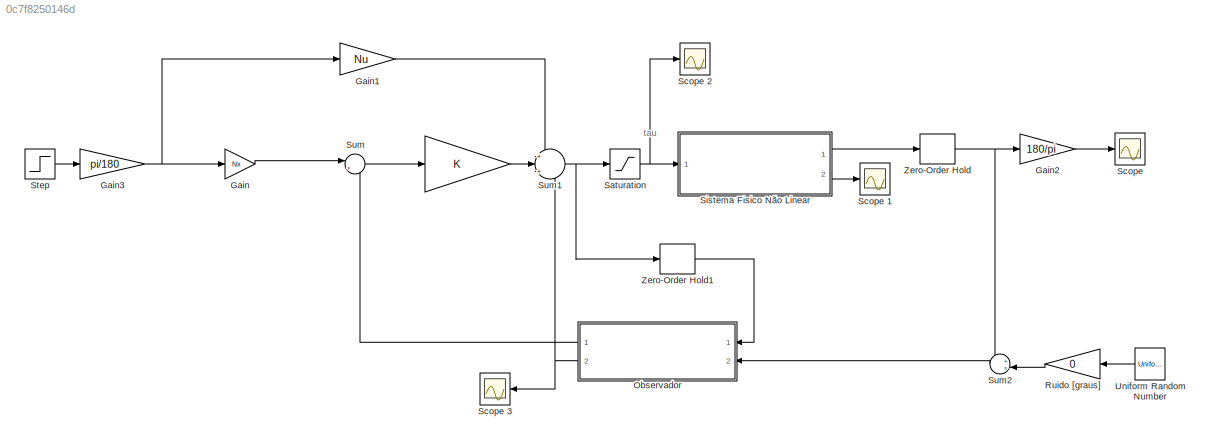
MODEL slx_0c7f8250146d
KIND model
CONFIG AbsTol = auto
CONFIG EnableMultiTasking = off
CONFIG FixedStep = 0.001
CONFIG MaxStep = auto
CONFIG MinStep = auto
CONFIG RelTol = 1e-3
CONFIG SampleTimeConstraint = Unconstrained
CONFIG Solver = ode23s
CONFIG SolverName = ode23s
CONFIG StartTime = 0.0
CONFIG StopTime = 15
BLOCK [Gain]  
  Gain = K
  Multiplication = Matrix(K*u)
BLOCK [Gain] Gain
  Gain = Nx
BLOCK [Gain] Gain1
  Gain = Nu
  Multiplication = Matrix(K*u)
BLOCK [Gain] Gain2
  Gain = 180/pi
BLOCK [Gain] Gain3
  Gain = pi/180
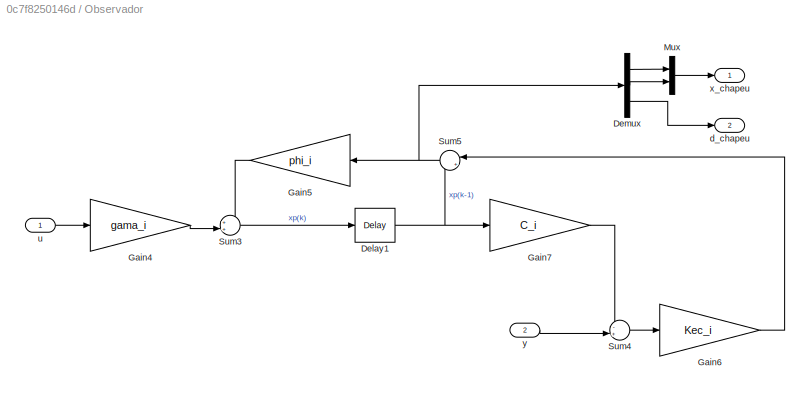
BLOCK [SubSystem] Observador
  NameLocation = top
  Ports = [2, 2]
  RequestExecContextInheritance = off
BLOCK [Delay] Observador/Delay1
  DelayLength = 1
  InitialCondition = [0;0;0]
  InputPortMap = u0
  Ports = [1, 1]
BLOCK [Demux] Observador/Demux
  Outputs = 3
  Ports = [1, 3]
BLOCK [Gain] Observador/Gain4
  Gain = gama_i
  Multiplication = Matrix(K*u) (u vector)
BLOCK [Gain] Observador/Gain5
  Gain = phi_i
  Multiplication = Matrix(K*u) (u vector)
  NameLocation = top
BLOCK [Gain] Observador/Gain6
  Gain = Kec_i
  NameLocation = top
BLOCK [Gain] Observador/Gain7
  Gain = C_i
  Multiplication = Matrix(K*u) (u vector)
  NameLocation = top
BLOCK [Mux] Observador/Mux
  DisplayOption = bar
  Inputs = 2
  Ports = [2, 1]
BLOCK [Sum] Observador/Sum3
  Inputs = ++|
  Ports = [2, 1]
BLOCK [Sum] Observador/Sum4
  Inputs = -+|
  Ports = [2, 1]
BLOCK [Sum] Observador/Sum5
  Inputs = |++
  NameLocation = top
  Ports = [2, 1]
BLOCK [Outport] Observador/d_chapeu
  Port = 2
  VectorParamsAs1DForOutWhenUnconnected = off
BLOCK [Inport] Observador/u
BLOCK [Outport] Observador/x_chapeu
  VectorParamsAs1DForOutWhenUnconnected = off
BLOCK [Inport] Observador/y
  Port = 2
BLOCK [Gain] Ruido [graus]
  Gain = 0
BLOCK [Saturate] Saturation 
  LowerLimit = -0.4118793
  UpperLimit = 0.4118793
BLOCK [Scope] Scope 
  Floating = off
  NumInputPorts = 1
  Ports = [1]
  ScopeSpecificationString = Simulink.scopes.TimeScopeBlockCfg('CurrentConfiguration', extmgr.ConfigurationSet(extmgr.Configuration('Core','General UI',true),extmgr.Configuration('Core','Source UI',true),extmgr.Configuration('Sources','WiredSimulink',true),extmgr.Configuration('Visuals','Time Domain',true,'SerializedDisplays',{struct('MinYLimReal','-47270.18875','MaxYLimReal','425431.69879','YLabelReal','','MinYLimMag','   0....<+1495ch>
BLOCK [Scope] Scope 1
  Floating = off
  NumInputPorts = 1
  Ports = [1]
  ScopeSpecificationString = Simulink.scopes.TimeScopeBlockCfg('CurrentConfiguration', extmgr.ConfigurationSet(extmgr.Configuration('Core','General UI',true),extmgr.Configuration('Core','Source UI',true),extmgr.Configuration('Sources','WiredSimulink',true,'DataLoggingVariableName','ScopeData1'),extmgr.Configuration('Visuals','Time Domain',true,'SerializedDisplays',{struct('MinYLimReal','-638.31258','MaxYLimReal','303.11157','...<+1536ch>
BLOCK [Scope] Scope 2
  Floating = off
  NumInputPorts = 1
  Ports = [1]
  ScopeSpecificationString = Simulink.scopes.TimeScopeBlockCfg('CurrentConfiguration', extmgr.ConfigurationSet(extmgr.Configuration('Core','General UI',true),extmgr.Configuration('Core','Source UI',true),extmgr.Configuration('Sources','WiredSimulink',true,'DataLoggingVariableName','ScopeData2'),extmgr.Configuration('Visuals','Time Domain',true,'SerializedDisplays',{struct('MinYLimReal','-0.51485','MaxYLimReal','0.51485','YLab...<+1506ch>
BLOCK [Scope] Scope 3
  Floating = off
  NameLocation = top
  NumInputPorts = 1
  Ports = [1]
  ScopeSpecificationString = Simulink.scopes.TimeScopeBlockCfg('CurrentConfiguration', extmgr.ConfigurationSet(extmgr.Configuration('Core','General UI',true),extmgr.Configuration('Core','Source UI',true),extmgr.Configuration('Sources','WiredSimulink',true,'DataLoggingVariableName','ScopeData3'),extmgr.Configuration('Visuals','Time Domain',true,'SerializedDisplays',{struct('MinYLimReal','-85880.84178','MaxYLimReal','207144.447...<+1541ch>
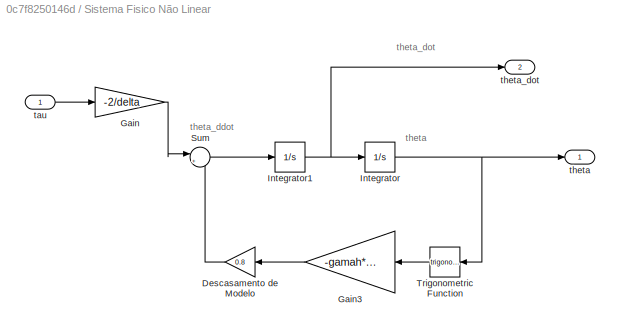
BLOCK [SubSystem] Sistema Fisico Não Linear
  Ports = [1, 2]
  RequestExecContextInheritance = off
BLOCK [Gain] Sistema Fisico Não Linear/Descasamento de Modelo
  Gain = 0.8
BLOCK [Gain] Sistema Fisico Não Linear/Gain
  Gain = -2/delta
BLOCK [Gain] Sistema Fisico Não Linear/Gain3
  Gain = -gamah*g/delta
  NameLocation = top
BLOCK [Integrator] Sistema Fisico Não Linear/Integrator
  Ports = [1, 1]
BLOCK [Integrator] Sistema Fisico Não Linear/Integrator1
  Ports = [1, 1]
BLOCK [Sum] Sistema Fisico Não Linear/Sum
  Inputs = |++
  Ports = [2, 1]
BLOCK [Trigonometry] Sistema Fisico Não Linear/Trigonometric Function
  NameLocation = top
  Ports = [1, 1]
BLOCK [Inport] Sistema Fisico Não Linear/tau
BLOCK [Outport] Sistema Fisico Não Linear/theta
BLOCK [Outport] Sistema Fisico Não Linear/theta_dot
  Port = 2
BLOCK [Step] Step
  After = 10
  SampleTime = 0
BLOCK [Sum] Sum
  Inputs = |+-
  Ports = [2, 1]
BLOCK [Sum] Sum1
  Inputs = +|+|-
  Ports = [3, 1]
BLOCK [Sum] Sum2
  Inputs = ++|
  NameLocation = top
  Ports = [2, 1]
BLOCK [UniformRandomNumber] Uniform Random Number 
  Maximum = pi/180
  Minimum = -pi/180
  NameLocation = top
  SampleTime = Ta
BLOCK [ZeroOrderHold] Zero-Order Hold
  SampleTime = Ta
BLOCK [ZeroOrderHold] Zero-Order Hold1
  SampleTime = Ta
ANNOTATION (root): tau
ANNOTATION Sistema Fisico Não Linear: theta
ANNOTATION Sistema Fisico Não Linear: theta_ddot
ANNOTATION Sistema Fisico Não Linear: theta_dot
LINE  :1 -> Sum1:2
LINE Gain1:1 -> Sum1:1
LINE Gain2:1 -> Scope :1
NET Gain3:1 -> Gain1:1, Gain:1
LINE Gain:1 -> Sum:1
NET Observador/Delay1:1 -> Observador/Gain7:1, Observador/Sum5:2
LINE Observador/Demux:1 -> Observador/Mux:1
LINE Observador/Demux:2 -> Observador/Mux:2
LINE Observador/Demux:3 -> Observador/d_chapeu:1
LINE Observador/Gain4:1 -> Observador/Sum3:2
LINE Observador/Gain5:1 -> Observador/Sum3:1
LINE Observador/Gain6:1 -> Observador/Sum5:1
LINE Observador/Gain7:1 -> Observador/Sum4:1
LINE Observador/Mux:1 -> Observador/x_chapeu:1
LINE Observador/Sum3:1 -> Observador/Delay1:1
LINE Observador/Sum4:1 -> Observador/Gain6:1
NET Observador/Sum5:1 -> Observador/Demux:1, Observador/Gain5:1
LINE Observador/u:1 -> Observador/Gain4:1
LINE Observador/y:1 -> Observador/Sum4:2
LINE Observador:1 -> Sum:2
NET Observador:2 -> Scope 3:1, Sum1:3
LINE Ruido [graus]:1 -> Sum2:2
NET Saturation :1 -> Scope 2:1, Sistema Fisico Não Linear:1
LINE Sistema Fisico Não Linear/Descasamento de Modelo:1 -> Sistema Fisico Não Linear/Sum:2
LINE Sistema Fisico Não Linear/Gain3:1 -> Sistema Fisico Não Linear/Descasamento de Modelo:1
LINE Sistema Fisico Não Linear/Gain:1 -> Sistema Fisico Não Linear/Sum:1
NET Sistema Fisico Não Linear/Integrator1:1 -> Sistema Fisico Não Linear/Integrator:1, Sistema Fisico Não Linear/theta_dot:1
NET Sistema Fisico Não Linear/Integrator:1 -> Sistema Fisico Não Linear/Trigonometric Function:1, Sistema Fisico Não Linear/theta:1
LINE Sistema Fisico Não Linear/Sum:1 -> Sistema Fisico Não Linear/Integrator1:1
LINE Sistema Fisico Não Linear/Trigonometric Function:1 -> Sistema Fisico Não Linear/Gain3:1
LINE Sistema Fisico Não Linear/tau:1 -> Sistema Fisico Não Linear/Gain:1
LINE Sistema Fisico Não Linear:1 -> Zero-Order Hold:1
LINE Sistema Fisico Não Linear:2 -> Scope 1:1
LINE Step:1 -> Gain3:1
NET Sum1:1 -> Saturation :1, Zero-Order Hold1:1
LINE Sum2:1 -> Observador:2
LINE Sum:1 ->  :1
LINE Uniform Random Number :1 -> Ruido [graus]:1
LINE Zero-Order Hold1:1 -> Observador:1
NET Zero-Order Hold:1 -> Gain2:1, Sum2:1
note: NET lines group one-source signal fan-out (src -> all destinations, sorted); 1:1 wires keep LINE
